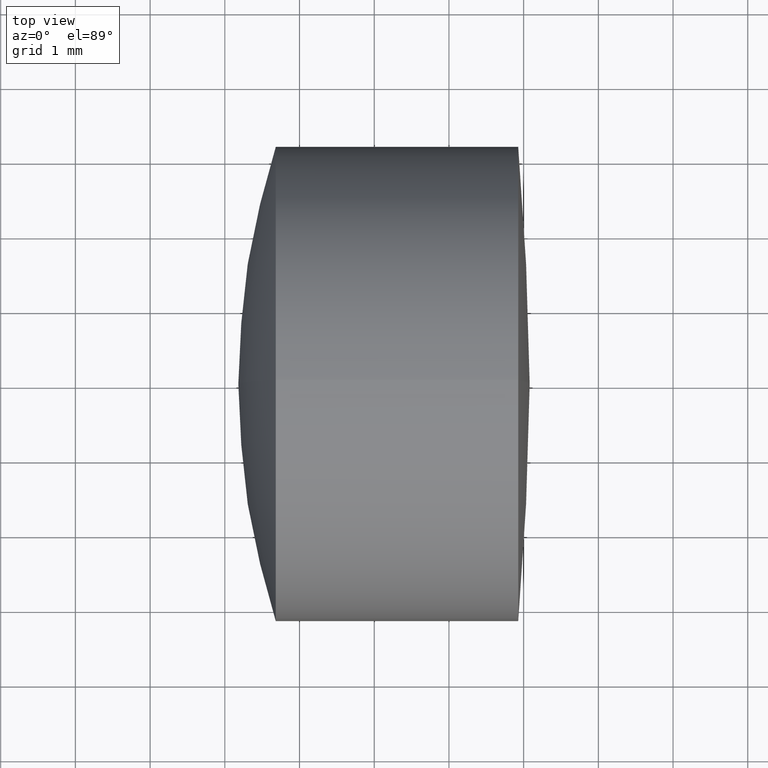
[diagram: clean part render]
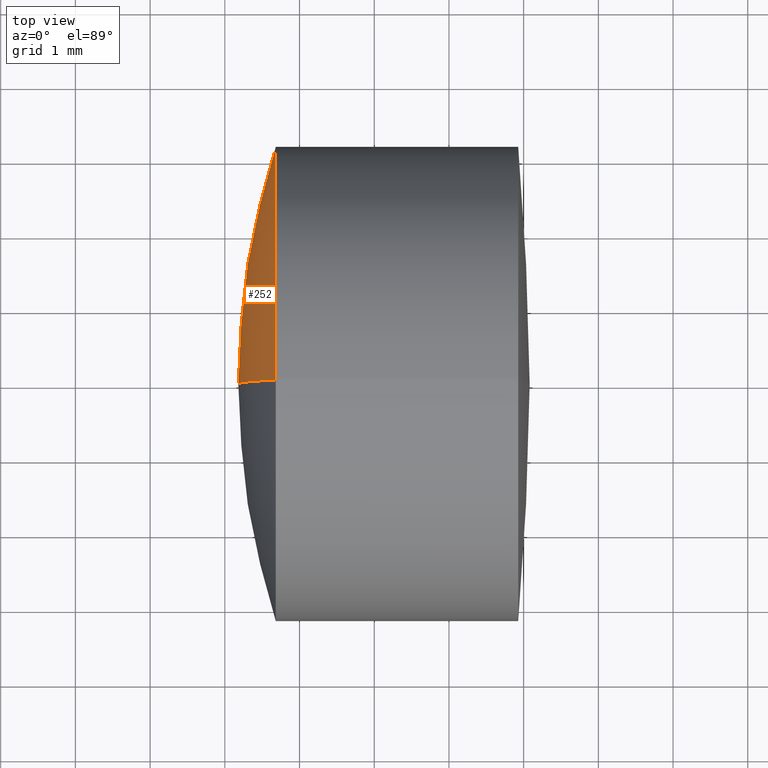
[diagram: same view with one face highlighted and labeled with its STEP entity id]
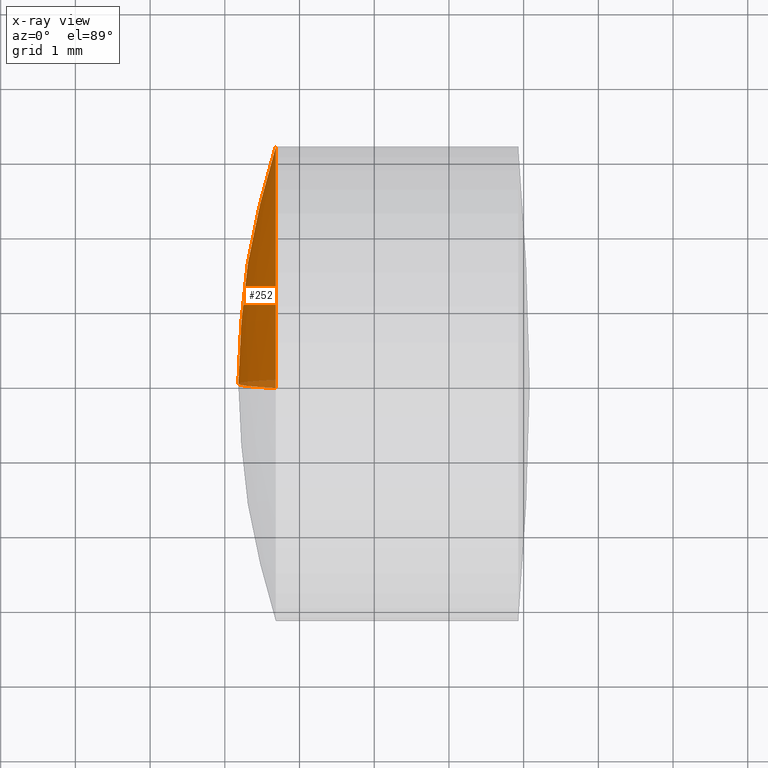
[diagram: x-ray of the same camera — body ghosted, the highlighted face saturated]
A machine part, top view. The second image highlights one B-rep face of the part: STEP entity #252.
The next image is the same camera in x-ray: the body ghosted, the highlighted face saturated — about 3% of this face is hidden behind the body in this view.
In plain terms, the highlighted spherical surface has radius 10.3 mm.
Its self-contained STEP definition (entity closure, byte-faithful):
#3 = CARTESIAN_POINT ( 'NONE',  ( 271.4807127546710600, 0.0000000000000000000, 1.443480347080286500E-016 ) ) ;
#19 = DIRECTION ( 'NONE',  ( 0.0000000000000000000, -1.000000000000000000, -1.224646799147353200E-016 ) ) ;
#20 = AXIS2_PLACEMENT_3D ( 'NONE', #310, #19, #110 ) ;
#33 = ORIENTED_EDGE ( 'NONE', *, *, #43, .T. ) ;
#43 = EDGE_CURVE ( 'NONE', #277, #194, #133, .T. ) ;
#53 = FACE_OUTER_BOUND ( 'NONE', #226, .T. ) ;
#55 = CARTESIAN_POINT ( 'NONE',  ( 261.1807127546711100, 0.0000000000000000000, -4.863450668528573700E-016 ) ) ;
#80 = VERTEX_POINT ( 'NONE', #294 ) ;
#93 = AXIS2_PLACEMENT_3D ( 'NONE', #313, #137, #290 ) ;
#110 = DIRECTION ( 'NONE',  ( 0.0000000000000000000, 1.224646799147353200E-016, -1.000000000000000000 ) ) ;
#115 = EDGE_CURVE ( 'NONE', #80, #277, #136, .T. ) ;
#121 = SPHERICAL_SURFACE ( 'NONE', #305, 10.29999999999998600 ) ;
#123 = ORIENTED_EDGE ( 'NONE', *, *, #115, .T. ) ;
#133 = CIRCLE ( 'NONE', #257, 10.29999999999998600 ) ;
#136 = CIRCLE ( 'NONE', #93, 3.174999999999999800 ) ;
#137 = DIRECTION ( 'NONE',  ( -1.000000000000000000, -0.0000000000000000000, -0.0000000000000000000 ) ) ;
#141 = DIRECTION ( 'NONE',  ( 0.0000000000000000000, 0.0000000000000000000, 1.000000000000000000 ) ) ;
#163 = DIRECTION ( 'NONE',  ( 0.0000000000000000000, 0.0000000000000000000, -1.000000000000000000 ) ) ;
#186 = CARTESIAN_POINT ( 'NONE',  ( 261.6822753792524700, 0.0000000000000000000, -3.174999999999999800 ) ) ;
#192 = EDGE_CURVE ( 'NONE', #80, #194, #339, .T. ) ;
#194 = VERTEX_POINT ( 'NONE', #55 ) ;
#226 = EDGE_LOOP ( 'NONE', ( #321, #123, #33 ) ) ;
#245 = DIRECTION ( 'NONE',  ( -0.0000000000000000000, -1.000000000000000000, -0.0000000000000000000 ) ) ;
#252 = ADVANCED_FACE ( 'NONE', ( #53 ), #121, .T. ) ;
#257 = AXIS2_PLACEMENT_3D ( 'NONE', #347, #316, #141 ) ;
#277 = VERTEX_POINT ( 'NONE', #186 ) ;
#290 = DIRECTION ( 'NONE',  ( 0.0000000000000000000, 0.0000000000000000000, 1.000000000000000000 ) ) ;
#294 = CARTESIAN_POINT ( 'NONE',  ( 261.6822753792524700, -3.888253587292846100E-016, 3.174999999999999800 ) ) ;
#305 = AXIS2_PLACEMENT_3D ( 'NONE', #3, #245, #163 ) ;
#310 = CARTESIAN_POINT ( 'NONE',  ( 271.4807127546710600, 0.0000000000000000000, 1.443480347080286500E-016 ) ) ;
#313 = CARTESIAN_POINT ( 'NONE',  ( 261.6822753792524700, 0.0000000000000000000, 0.0000000000000000000 ) ) ;
#316 = DIRECTION ( 'NONE',  ( 0.0000000000000000000, 1.000000000000000000, -0.0000000000000000000 ) ) ;
#321 = ORIENTED_EDGE ( 'NONE', *, *, #192, .F. ) ;
#339 = CIRCLE ( 'NONE', #20, 10.29999999999998600 ) ;
#347 = CARTESIAN_POINT ( 'NONE',  ( 271.4807127546710600, 0.0000000000000000000, 1.443480347080286500E-016 ) ) ;